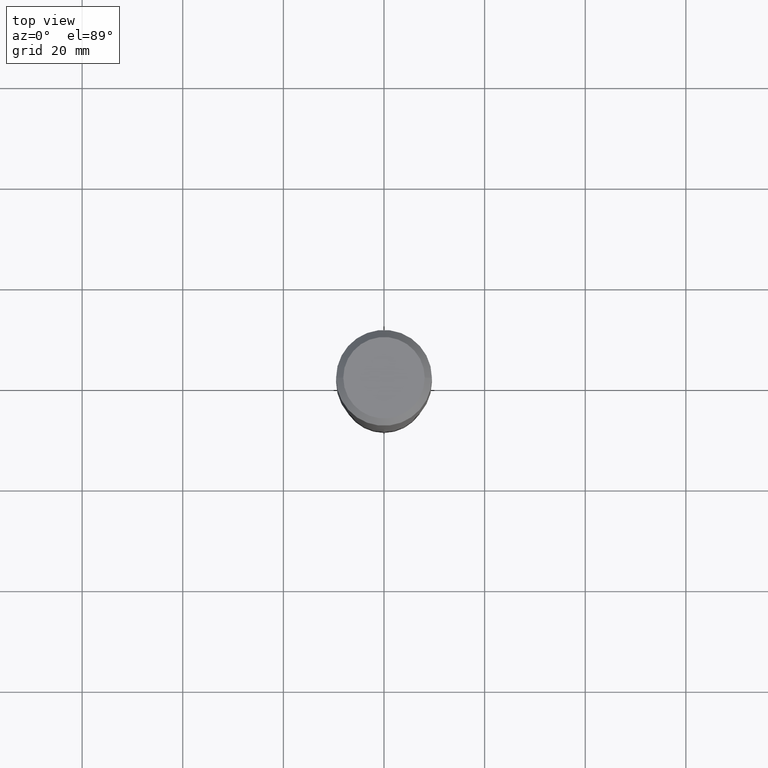
[diagram: clean part render]
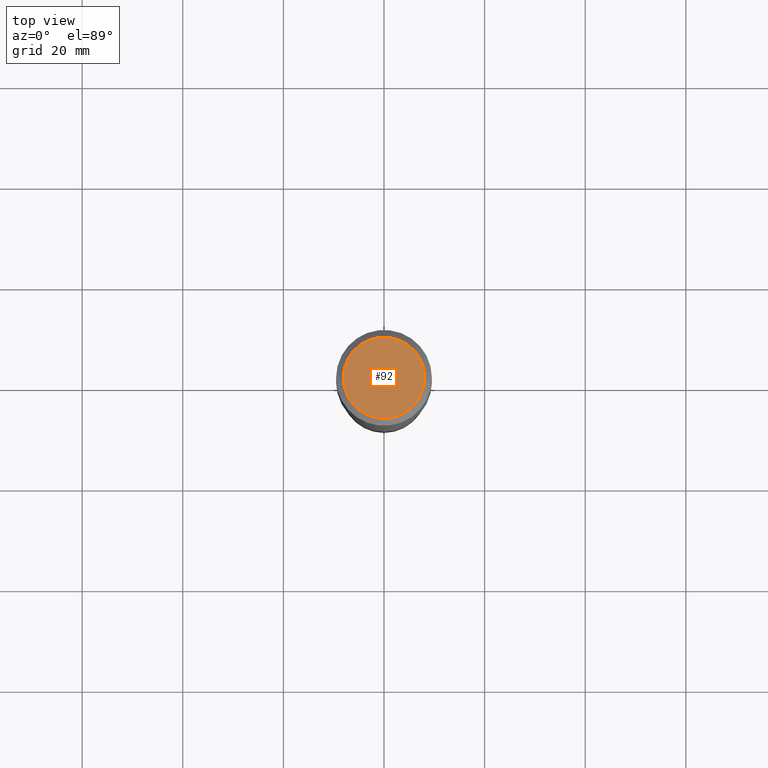
[diagram: same view with one face highlighted and labeled with its STEP entity id]
A machine part, top view. The second image highlights one B-rep face of the part: STEP entity #92.
In plain terms, the highlighted planar face has unit normal (0, -0, -1).
Its self-contained STEP definition (entity closure, byte-faithful):
#34 = DIRECTION ( 'NONE',  ( 1.000000000000000000, -6.982962677686267499E-15, 4.876227444496879000E-29 ) ) ;
#48 = CIRCLE ( 'NONE', #174, 0.3187499999999999778 ) ;
#53 = DIRECTION ( 'NONE',  ( 1.000000000000000000, -6.982962677686267499E-15, 4.876227444496879000E-29 ) ) ;
#56 = AXIS2_PLACEMENT_3D ( 'NONE', #73, #221, #283 ) ;
#73 = CARTESIAN_POINT ( 'NONE',  ( -7.955031918821654702E-47, 1.135767727816384474E-32, 3.252968060235159383E-18 ) ) ;
#92 = ADVANCED_FACE ( 'NONE', ( #131 ), #191, .F. ) ;
#131 = FACE_OUTER_BOUND ( 'NONE', #257, .T. ) ;
#150 = CIRCLE ( 'NONE', #217, 0.3187499999999999778 ) ;
#174 = AXIS2_PLACEMENT_3D ( 'NONE', #224, #379, #34 ) ;
#190 = VERTEX_POINT ( 'NONE', #200 ) ;
#191 = PLANE ( 'NONE',  #56 ) ;
#200 = CARTESIAN_POINT ( 'NONE',  ( 0.3187499999999999778, -2.477933155631963807E-15, 6.505936120486764667E-18 ) ) ;
#202 = ORIENTED_EDGE ( 'NONE', *, *, #291, .T. ) ;
#217 = AXIS2_PLACEMENT_3D ( 'NONE', #359, #402, #53 ) ;
#221 = DIRECTION ( 'NONE',  ( 2.438088387897960049E-29, -3.491481338843145188E-15, -1.000000000000000000 ) ) ;
#224 = CARTESIAN_POINT ( 'NONE',  ( -1.591006383764330940E-46, 2.271535455632768948E-32, 6.505936120470318766E-18 ) ) ;
#257 = EDGE_LOOP ( 'NONE', ( #349, #202 ) ) ;
#283 = DIRECTION ( 'NONE',  ( -1.000000000000000000, 6.982962677686265922E-15, -4.876176775795935793E-29 ) ) ;
#291 = EDGE_CURVE ( 'NONE', #190, #450, #150, .T. ) ;
#349 = ORIENTED_EDGE ( 'NONE', *, *, #429, .T. ) ;
#359 = CARTESIAN_POINT ( 'NONE',  ( -1.591006383764330940E-46, 2.271535455632768948E-32, 6.505936120470318766E-18 ) ) ;
#379 = DIRECTION ( 'NONE',  ( -2.445468806185136597E-29, 3.491481338843145583E-15, 1.000000000000000000 ) ) ;
#402 = DIRECTION ( 'NONE',  ( -2.445468806185136597E-29, 3.491481338843145583E-15, 1.000000000000000000 ) ) ;
#429 = EDGE_CURVE ( 'NONE', #450, #190, #48, .T. ) ;
#440 = CARTESIAN_POINT ( 'NONE',  ( -0.3187499999999999778, 2.324017266167459654E-15, 6.505936120454409815E-18 ) ) ;
#450 = VERTEX_POINT ( 'NONE', #440 ) ;